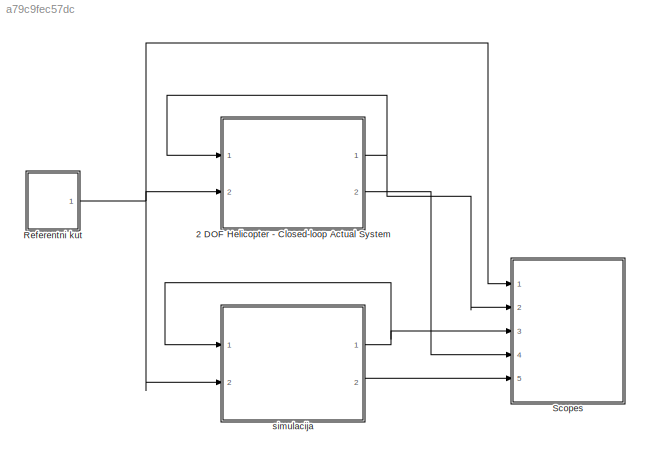
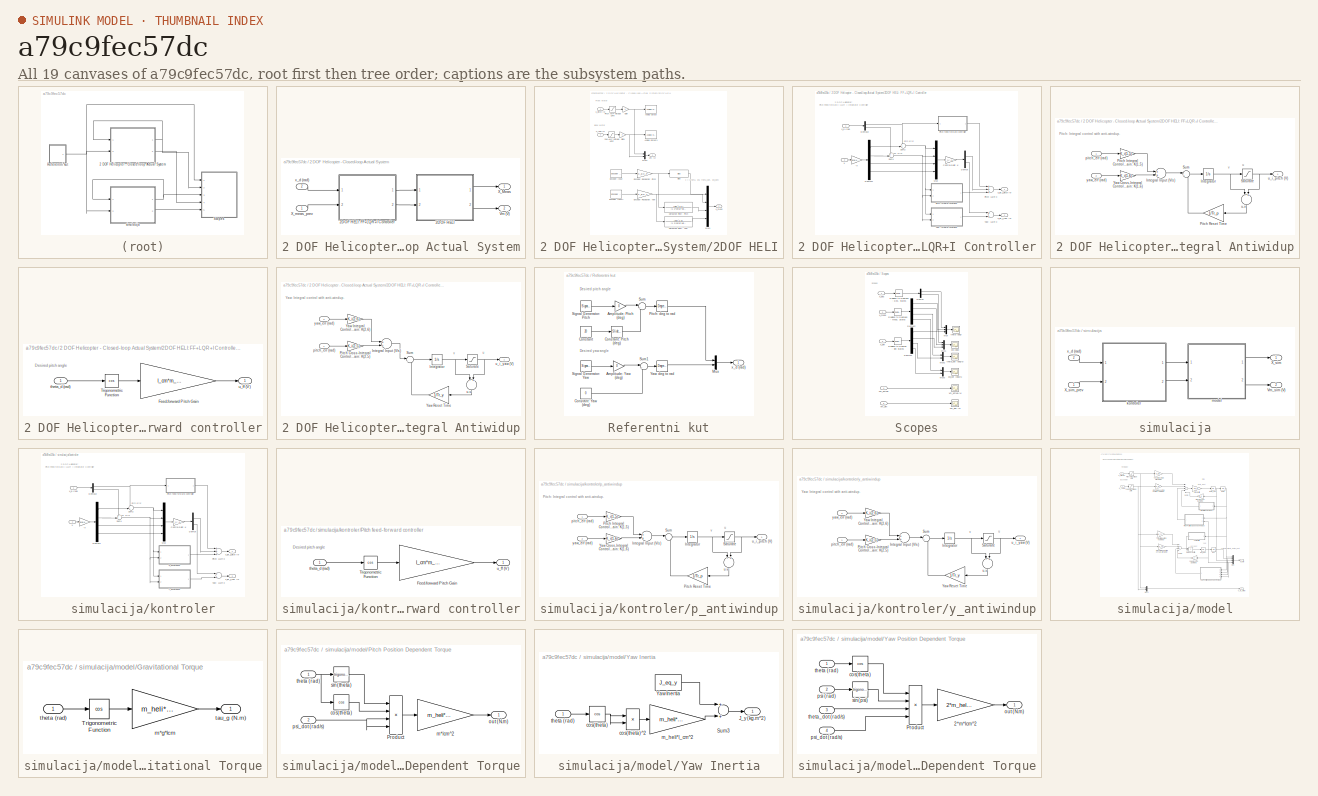
[diagram: thumbnail index - all 19 canvases of the model, root first then tree order]
MODEL slx_a79c9fec57dc
KIND model
CONFIG AbsTol = auto
CONFIG EnableMultiTasking = off
CONFIG FixedStep = 1e-3
CONFIG MaxStep = auto
CONFIG MinStep = auto
CONFIG RelTol = 1e-3
CONFIG SampleTimeConstraint = Unconstrained
CONFIG Solver = FixedStepAuto
CONFIG SolverName = FixedStepAuto
CONFIG StartTime = 0.0
CONFIG StopTime = inf
BLOCK [SubSystem] 2 DOF Helicopter - Closed-loop Actual System
  Ports = [2, 2]
  RequestExecContextInheritance = off
  Variant = off
BLOCK [SubSystem] 2 DOF Helicopter - Closed-loop Actual System/2DOF HELI
  Ports = [2, 2]
  RequestExecContextInheritance = off
  Variant = off
BLOCK [Reference] 2 DOF Helicopter - Closed-loop Actual System/2DOF HELI/Analog Output  REF=sldrtlib/Analog Output
  AttributesFormatString = Quanser\nMultiQ-PCI [auto]
  Ports = [1]
  SourceBlock = sldrtlib/Analog Output
  SourceType = Simulink Desktop Real-Time Analog Output
BLOCK [Reference] 2 DOF Helicopter - Closed-loop Actual System/2DOF HELI/Analog Output1  REF=sldrtlib/Analog Output
  AttributesFormatString = Quanser\nMultiQ-PCI [auto]
  Ports = [1]
  SourceBlock = sldrtlib/Analog Output
  SourceType = Simulink Desktop Real-Time Analog Output
BLOCK [Bias] 2 DOF Helicopter - Closed-loop Actual System/2DOF HELI/Bias
  Bias = theta_0
  SaturateOnIntegerOverflow = off
BLOCK [TransferFcn] 2 DOF Helicopter - Closed-loop Actual System/2DOF HELI/Derivative Filter: Pitch
  Denominator = [1 2*zetaf*wcf wcf^2]
  Numerator = [wcf^2 0 ]
BLOCK [TransferFcn] 2 DOF Helicopter - Closed-loop Actual System/2DOF HELI/Derivative Filter: Yaw
  Denominator = [1 2*zetaf*wcf wcf^2]
  Numerator = [wcf^2 0]
BLOCK [Reference] 2 DOF Helicopter - Closed-loop Actual System/2DOF HELI/Encoder Input  REF=sldrtlib/Encoder Input
  AttributesFormatString = Quanser\nMultiQ-PCI [auto]
  Ports = [0, 1]
  SourceBlock = sldrtlib/Encoder Input
  SourceType = Simulink Desktop Real-Time Encoder Input
BLOCK [Reference] 2 DOF Helicopter - Closed-loop Actual System/2DOF HELI/Encoder Input1  REF=sldrtlib/Encoder Input
  AttributesFormatString = Quanser\nMultiQ-PCI [auto]
  Ports = [0, 1]
  SourceBlock = sldrtlib/Encoder Input
  SourceType = Simulink Desktop Real-Time Encoder Input
BLOCK [Gain] 2 DOF Helicopter - Closed-loop Actual System/2DOF HELI/Encoder Resolution: Pitch 
  Gain = K_EC_P
  OutDataTypeStr = Inherit: Inherit via internal rule
  ParamDataTypeStr = Inherit: Inherit via internal rule
  SaturateOnIntegerOverflow = off
BLOCK [Gain] 2 DOF Helicopter - Closed-loop Actual System/2DOF HELI/Encoder Resolution: Yaw
  Gain = K_EC_Y
  OutDataTypeStr = Inherit: Inherit via internal rule
  ParamDataTypeStr = Inherit: Inherit via internal rule
  SaturateOnIntegerOverflow = off
BLOCK [Gain] 2 DOF Helicopter - Closed-loop Actual System/2DOF HELI/Gain
  OutDataTypeStr = Inherit: Inherit via internal rule
  ParamDataTypeStr = Inherit: Inherit via internal rule
  SaturateOnIntegerOverflow = off
BLOCK [Gain] 2 DOF Helicopter - Closed-loop Actual System/2DOF HELI/Gain1
  Gain = -1
  OutDataTypeStr = Inherit: Inherit via internal rule
  ParamDataTypeStr = Inherit: Inherit via internal rule
  SaturateOnIntegerOverflow = off
BLOCK [Mux] 2 DOF Helicopter - Closed-loop Actual System/2DOF HELI/Mux1
  DisplayOption = bar
  Ports = [4, 1]
BLOCK [Mux] 2 DOF Helicopter - Closed-loop Actual System/2DOF HELI/Mux2
  DisplayOption = bar
  Inputs = 2
  Ports = [2, 1]
BLOCK [Saturate] 2 DOF Helicopter - Closed-loop Actual System/2DOF HELI/Pitch AMP Voltage Limit
  InputPortMap = u0
  LowerLimit = - max_u
  Ports = [1, 1]
  UpperLimit = max_u
BLOCK [Outport] 2 DOF Helicopter - Closed-loop Actual System/2DOF HELI/Vm (V)
  IconDisplay = Port number
  Port = 2
BLOCK [Outport] 2 DOF Helicopter - Closed-loop Actual System/2DOF HELI/X_meas
  IconDisplay = Port number
BLOCK [Saturate] 2 DOF Helicopter - Closed-loop Actual System/2DOF HELI/Yaw AMP Voltage Limit
  InputPortMap = u0
  LowerLimit = - max_u
  Ports = [1, 1]
  UpperLimit = max_u
BLOCK [Inport] 2 DOF Helicopter - Closed-loop Actual System/2DOF HELI/u_pitch (V)
  IconDisplay = Port number
BLOCK [Inport] 2 DOF Helicopter - Closed-loop Actual System/2DOF HELI/u_yaw (V)
  IconDisplay = Port number
  Port = 2
BLOCK [SubSystem] 2 DOF Helicopter - Closed-loop Actual System/2DOF HELI: FF+LQR+I Controller
  Ports = [2, 2]
  RequestExecContextInheritance = off
  Variant = off
BLOCK [Gain] 2 DOF Helicopter - Closed-loop Actual System/2DOF HELI: FF+LQR+I Controller/-X
  Gain = -eye(4,4)
  Multiplication = Matrix(K*u)
  OutDataTypeStr = Inherit: Inherit via internal rule
  ParamDataTypeStr = Inherit: Inherit via internal rule
  SaturateOnIntegerOverflow = off
BLOCK [Gain] 2 DOF Helicopter - Closed-loop Actual System/2DOF HELI: FF+LQR+I Controller/Control Gain: K
  Gain = K_i(:,1:4)
  Multiplication = Matrix(K*u)
  OutDataTypeStr = Inherit: Inherit via internal rule
  ParamDataTypeStr = Inherit: Inherit via internal rule
  SaturateOnIntegerOverflow = off
BLOCK [Demux] 2 DOF Helicopter - Closed-loop Actual System/2DOF HELI: FF+LQR+I Controller/Demux
  DisplayOption = bar
  Outputs = 2
  Ports = [1, 2]
BLOCK [Demux] 2 DOF Helicopter - Closed-loop Actual System/2DOF HELI: FF+LQR+I Controller/Demux1
  DisplayOption = bar
  Ports = [1, 4]
BLOCK [Demux] 2 DOF Helicopter - Closed-loop Actual System/2DOF HELI: FF+LQR+I Controller/Demux2
  DisplayOption = bar
  Outputs = 2
  Ports = [1, 2]
BLOCK [Mux] 2 DOF Helicopter - Closed-loop Actual System/2DOF HELI: FF+LQR+I Controller/Mux
  DisplayOption = bar
  Ports = [4, 1]
BLOCK [SubSystem] 2 DOF Helicopter - Closed-loop Actual System/2DOF HELI: FF+LQR+I Controller/Pitch Integral Antiwidup
  Ports = [2, 1]
  RequestExecContextInheritance = off
  Variant = off
BLOCK [Sum] 2 DOF Helicopter - Closed-loop Actual System/2DOF HELI: FF+LQR+I Controller/Pitch Integral Antiwidup/Integral Input (V//s)
  InputSameDT = off
  OutDataTypeStr = Inherit: Inherit via internal rule
  Ports = [2, 1]
  SaturateOnIntegerOverflow = off
BLOCK [Integrator] 2 DOF Helicopter - Closed-loop Actual System/2DOF HELI: FF+LQR+I Controller/Pitch Integral Antiwidup/Integrator
  Ports = [1, 1]
BLOCK [Gain] 2 DOF Helicopter - Closed-loop Actual System/2DOF HELI: FF+LQR+I Controller/Pitch Integral Antiwidup/Pitch Integral Control Gain: K(1,5)
  Gain = K_i(1,5)
  Multiplication = Matrix(K*u)
  OutDataTypeStr = Inherit: Inherit via internal rule
  ParamDataTypeStr = Inherit: Inherit via internal rule
  SaturateOnIntegerOverflow = off
BLOCK [Gain] 2 DOF Helicopter - Closed-loop Actual System/2DOF HELI: FF+LQR+I Controller/Pitch Integral Antiwidup/Pitch Reset Time
  Gain = 1/Tr_p
  OutDataTypeStr = Inherit: Inherit via internal rule
  ParamDataTypeStr = Inherit: Inherit via internal rule
  SaturateOnIntegerOverflow = off
BLOCK [Saturate] 2 DOF Helicopter - Closed-loop Actual System/2DOF HELI: FF+LQR+I Controller/Pitch Integral Antiwidup/Saturate
  InputPortMap = u0
  LowerLimit = -max_u
  Ports = [1, 1]
  UpperLimit = max_u
BLOCK [Sum] 2 DOF Helicopter - Closed-loop Actual System/2DOF HELI: FF+LQR+I Controller/Pitch Integral Antiwidup/Sum
  IconShape = round
  InputSameDT = off
  Inputs = |++
  OutDataTypeStr = Inherit: Inherit via internal rule
  Ports = [2, 1]
  SaturateOnIntegerOverflow = off
BLOCK [Gain] 2 DOF Helicopter - Closed-loop Actual System/2DOF HELI: FF+LQR+I Controller/Pitch Integral Antiwidup/Yaw Cross-Integral Control Gain: K(1,6)
  Gain = K_i(1,6)
  Multiplication = Matrix(K*u)
  OutDataTypeStr = Inherit: Inherit via internal rule
  ParamDataTypeStr = Inherit: Inherit via internal rule
  SaturateOnIntegerOverflow = off
BLOCK [Inport] 2 DOF Helicopter - Closed-loop Actual System/2DOF HELI: FF+LQR+I Controller/Pitch Integral Antiwidup/pitch_err (rad)
  IconDisplay = Port number
BLOCK [Sum] 2 DOF Helicopter - Closed-loop Actual System/2DOF HELI: FF+LQR+I Controller/Pitch Integral Antiwidup/u-v
  InputSameDT = off
  Inputs = -+
  OutDataTypeStr = Inherit: Inherit via internal rule
  Ports = [2, 1]
  SaturateOnIntegerOverflow = off
BLOCK [Outport] 2 DOF Helicopter - Closed-loop Actual System/2DOF HELI: FF+LQR+I Controller/Pitch Integral Antiwidup/u_i_pitch (V)
  IconDisplay = Port number
BLOCK [Inport] 2 DOF Helicopter - Closed-loop Actual System/2DOF HELI: FF+LQR+I Controller/Pitch Integral Antiwidup/yaw_err (rad)
  IconDisplay = Port number
  Port = 2
BLOCK [SubSystem] 2 DOF Helicopter - Closed-loop Actual System/2DOF HELI: FF+LQR+I Controller/Pitch feed-forward controller
  Ports = [1, 1]
  RequestExecContextInheritance = off
  Variant = off
BLOCK [Gain] 2 DOF Helicopter - Closed-loop Actual System/2DOF HELI: FF+LQR+I Controller/Pitch feed-forward controller/Feed-forward Pitch Gain
  Gain = l_cm*m_heli*g / K_pp
  OutDataTypeStr = Inherit: Inherit via internal rule
  ParamDataTypeStr = Inherit: Inherit via internal rule
  SaturateOnIntegerOverflow = off
BLOCK [Trigonometry] 2 DOF Helicopter - Closed-loop Actual System/2DOF HELI: FF+LQR+I Controller/Pitch feed-forward controller/Trigonometric Function
  Operator = cos
  OutputSignalType = real
  Ports = [1, 1]
BLOCK [Inport] 2 DOF Helicopter - Closed-loop Actual System/2DOF HELI: FF+LQR+I Controller/Pitch feed-forward controller/theta_d (rad)
  IconDisplay = Port number
BLOCK [Outport] 2 DOF Helicopter - Closed-loop Actual System/2DOF HELI: FF+LQR+I Controller/Pitch feed-forward controller/u_ff (V)
  IconDisplay = Port number
BLOCK [Sum] 2 DOF Helicopter - Closed-loop Actual System/2DOF HELI: FF+LQR+I Controller/Pitch: LQR+I
  InputSameDT = off
  Inputs = +++
  OutDataTypeStr = Inherit: Inherit via internal rule
  Ports = [3, 1]
  SaturateOnIntegerOverflow = off
BLOCK [Sum] 2 DOF Helicopter - Closed-loop Actual System/2DOF HELI: FF+LQR+I Controller/Sum1
  IconShape = round
  InputSameDT = off
  Inputs = ++|
  OutDataTypeStr = Inherit: Inherit via internal rule
  Ports = [2, 1]
  SaturateOnIntegerOverflow = off
BLOCK [Sum] 2 DOF Helicopter - Closed-loop Actual System/2DOF HELI: FF+LQR+I Controller/Sum2
  IconShape = round
  InputSameDT = off
  Inputs = ++|
  OutDataTypeStr = Inherit: Inherit via internal rule
  Ports = [2, 1]
  SaturateOnIntegerOverflow = off
BLOCK [Inport] 2 DOF Helicopter - Closed-loop Actual System/2DOF HELI: FF+LQR+I Controller/X
  IconDisplay = Port number
  Port = 2
BLOCK [Inport] 2 DOF Helicopter - Closed-loop Actual System/2DOF HELI: FF+LQR+I Controller/X_d (rad)
  IconDisplay = Port number
BLOCK [SubSystem] 2 DOF Helicopter - Closed-loop Actual System/2DOF HELI: FF+LQR+I Controller/Yaw Integral Antiwidup
  Ports = [2, 1]
  RequestExecContextInheritance = off
  Variant = off
BLOCK [Sum] 2 DOF Helicopter - Closed-loop Actual System/2DOF HELI: FF+LQR+I Controller/Yaw Integral Antiwidup/Integral Input (V//s)
  InputSameDT = off
  OutDataTypeStr = Inherit: Inherit via internal rule
  Ports = [2, 1]
  SaturateOnIntegerOverflow = off
BLOCK [Integrator] 2 DOF Helicopter - Closed-loop Actual System/2DOF HELI: FF+LQR+I Controller/Yaw Integral Antiwidup/Integrator
  Ports = [1, 1]
BLOCK [Gain] 2 DOF Helicopter - Closed-loop Actual System/2DOF HELI: FF+LQR+I Controller/Yaw Integral Antiwidup/Pitch Cross-Integral Control Gain: K(2,5)
  Gain = K_i(2,5)
  Multiplication = Matrix(K*u)
  OutDataTypeStr = Inherit: Inherit via internal rule
  ParamDataTypeStr = Inherit: Inherit via internal rule
  SaturateOnIntegerOverflow = off
BLOCK [Saturate] 2 DOF Helicopter - Closed-loop Actual System/2DOF HELI: FF+LQR+I Controller/Yaw Integral Antiwidup/Saturate
  InputPortMap = u0
  LowerLimit = -max_u
  Ports = [1, 1]
  UpperLimit = max_u
BLOCK [Sum] 2 DOF Helicopter - Closed-loop Actual System/2DOF HELI: FF+LQR+I Controller/Yaw Integral Antiwidup/Sum
  IconShape = round
  InputSameDT = off
  Inputs = |++
  OutDataTypeStr = Inherit: Inherit via internal rule
  Ports = [2, 1]
  SaturateOnIntegerOverflow = off
BLOCK [Gain] 2 DOF Helicopter - Closed-loop Actual System/2DOF HELI: FF+LQR+I Controller/Yaw Integral Antiwidup/Yaw Integral Control Gain: K(2,6)
  Gain = K_i(2,6)
  Multiplication = Matrix(K*u)
  OutDataTypeStr = Inherit: Inherit via internal rule
  ParamDataTypeStr = Inherit: Inherit via internal rule
  SaturateOnIntegerOverflow = off
BLOCK [Gain] 2 DOF Helicopter - Closed-loop Actual System/2DOF HELI: FF+LQR+I Controller/Yaw Integral Antiwidup/Yaw Reset Time
  Gain = 1/Tr_y
  OutDataTypeStr = Inherit: Inherit via internal rule
  ParamDataTypeStr = Inherit: Inherit via internal rule
  SaturateOnIntegerOverflow = off
BLOCK [Inport] 2 DOF Helicopter - Closed-loop Actual System/2DOF HELI: FF+LQR+I Controller/Yaw Integral Antiwidup/pitch_err (rad)
  IconDisplay = Port number
BLOCK [Sum] 2 DOF Helicopter - Closed-loop Actual System/2DOF HELI: FF+LQR+I Controller/Yaw Integral Antiwidup/u-v
  InputSameDT = off
  Inputs = -+
  OutDataTypeStr = Inherit: Inherit via internal rule
  Ports = [2, 1]
  SaturateOnIntegerOverflow = off
BLOCK [Outport] 2 DOF Helicopter - Closed-loop Actual System/2DOF HELI: FF+LQR+I Controller/Yaw Integral Antiwidup/u_i_yaw (V)
  IconDisplay = Port number
BLOCK [Inport] 2 DOF Helicopter - Closed-loop Actual System/2DOF HELI: FF+LQR+I Controller/Yaw Integral Antiwidup/yaw_err (rad)
  IconDisplay = Port number
  Port = 2
BLOCK [Sum] 2 DOF Helicopter - Closed-loop Actual System/2DOF HELI: FF+LQR+I Controller/Yaw: LQR+I
  InputSameDT = off
  OutDataTypeStr = Inherit: Inherit via internal rule
  Ports = [2, 1]
  SaturateOnIntegerOverflow = off
BLOCK [Outport] 2 DOF Helicopter - Closed-loop Actual System/2DOF HELI: FF+LQR+I Controller/u_lqr_i_pitch (V)
  IconDisplay = Port number
BLOCK [Outport] 2 DOF Helicopter - Closed-loop Actual System/2DOF HELI: FF+LQR+I Controller/u_lqr_i_yaw (V)
  IconDisplay = Port number
  Port = 2
BLOCK [Outport] 2 DOF Helicopter - Closed-loop Actual System/Vm (V)
  IconDisplay = Port number
  Port = 2
BLOCK [Outport] 2 DOF Helicopter - Closed-loop Actual System/X_Meas
  IconDisplay = Port number
BLOCK [Inport] 2 DOF Helicopter - Closed-loop Actual System/X_meas_prev
  IconDisplay = Port number
BLOCK [Inport] 2 DOF Helicopter - Closed-loop Actual System/x_d (rad)
  IconDisplay = Port number
  Port = 2
BLOCK [SubSystem] Referentni kut
  Ports = [0, 1]
  RequestExecContextInheritance = off
  Variant = off
BLOCK [Gain] Referentni kut/Amplitude: Pitch (deg)
  Gain = 0
  OutDataTypeStr = Inherit: Inherit via internal rule
  ParamDataTypeStr = Inherit: Inherit via internal rule
  SaturateOnIntegerOverflow = off
BLOCK [Gain] Referentni kut/Amplitude: Yaw (deg)
  Gain = 0
  OutDataTypeStr = Inherit: Inherit via internal rule
  ParamDataTypeStr = Inherit: Inherit via internal rule
  SaturateOnIntegerOverflow = off
BLOCK [Constant] Referentni kut/Constant
  Value = 20
BLOCK [Reference] Referentni kut/Constant: Pitch (deg)  REF=simulink/Math
Operations/Slider
Gain
  Ports = [1, 1]
  SourceBlock = simulink/Math\nOperations/Slider\nGain
  SourceType = Slider Gain
BLOCK [Constant] Referentni kut/Constant: Yaw (deg)
  Value = 0
BLOCK [Mux] Referentni kut/Mux
  DisplayOption = bar
  Inputs = 2
  Ports = [2, 1]
BLOCK [Reference] Referentni kut/Pitch: deg to rad  REF=simulink_extras/Transformations/Degrees to
Radians
  Ports = [1, 1]
  SourceBlock = simulink_extras/Transformations/Degrees to\nRadians
  SourceType = DegreesToRadians
BLOCK [SignalGenerator] Referentni kut/Signal Generator: Pitch
  Amplitude = 15
  Frequency = 0.05
  Ports = [0, 1]
  WaveForm = square
BLOCK [SignalGenerator] Referentni kut/Signal Generator: Yaw
  Amplitude = 30
  Frequency = 0.05
  Ports = [0, 1]
  WaveForm = square
BLOCK [Sum] Referentni kut/Sum
  IconShape = round
  InputSameDT = off
  Inputs = |++
  OutDataTypeStr = Inherit: Inherit via internal rule
  Ports = [2, 1]
  SaturateOnIntegerOverflow = off
BLOCK [Sum] Referentni kut/Sum1
  IconShape = round
  InputSameDT = off
  Inputs = |++
  OutDataTypeStr = Inherit: Inherit via internal rule
  Ports = [2, 1]
  SaturateOnIntegerOverflow = off
BLOCK [Reference] Referentni kut/Yaw: deg to rad  REF=simulink_extras/Transformations/Degrees to
Radians
  Ports = [1, 1]
  SourceBlock = simulink_extras/Transformations/Degrees to\nRadians
  SourceType = DegreesToRadians
BLOCK [Outport] Referentni kut/x_d (rad)
  IconDisplay = Port number
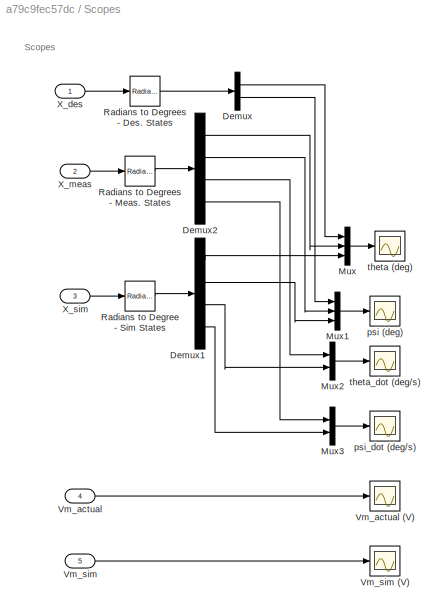
BLOCK [SubSystem] Scopes
  Ports = [5]
  RequestExecContextInheritance = off
  Variant = off
BLOCK [Demux] Scopes/Demux
  DisplayOption = bar
  Outputs = 2
  Ports = [1, 2]
BLOCK [Demux] Scopes/Demux1
  DisplayOption = bar
  Ports = [1, 4]
BLOCK [Demux] Scopes/Demux2
  DisplayOption = bar
  Ports = [1, 4]
BLOCK [Mux] Scopes/Mux
  DisplayOption = bar
  Inputs = 3
  Ports = [3, 1]
BLOCK [Mux] Scopes/Mux1
  DisplayOption = bar
  Inputs = 3
  Ports = [3, 1]
BLOCK [Mux] Scopes/Mux2
  DisplayOption = bar
  Inputs = 2
  Ports = [2, 1]
BLOCK [Mux] Scopes/Mux3
  DisplayOption = bar
  Inputs = 2
  Ports = [2, 1]
BLOCK [Reference] Scopes/Radians to Degree - Sim States  REF=simulink_extras/Transformations/Radians
to Degrees
  Ports = [1, 1]
  SourceBlock = simulink_extras/Transformations/Radians\nto Degrees
  SourceType = RadiansToDegrees
BLOCK [Reference] Scopes/Radians to Degrees - Des. States  REF=simulink_extras/Transformations/Radians
to Degrees
  Ports = [1, 1]
  SourceBlock = simulink_extras/Transformations/Radians\nto Degrees
  SourceType = RadiansToDegrees
BLOCK [Reference] Scopes/Radians to Degrees - Meas. States  REF=simulink_extras/Transformations/Radians
to Degrees
  Ports = [1, 1]
  SourceBlock = simulink_extras/Transformations/Radians\nto Degrees
  SourceType = RadiansToDegrees
BLOCK [Inport] Scopes/Vm_actual
  IconDisplay = Port number
  Port = 4
BLOCK [Scope] Scopes/Vm_actual (V)
  NumInputPorts = 1
  Ports = [1]
  ScopeSpecificationString = Simulink.scopes.TimeScopeBlockCfg('CurrentConfiguration', extmgr.ConfigurationSet(extmgr.Configuration('Core','General UI',true),extmgr.Configuration('Core','Source UI',true),extmgr.Configuration('Sources','WiredSimulink',true,'DataLoggingVariableName','Vm','DataLoggingSaveFormat','Array','DataLoggingDecimation','1','DataLoggingDecimateData',true,'DataLogging',true),extmgr.Configuration('Visuals',...<+1746ch>
BLOCK [Inport] Scopes/Vm_sim
  IconDisplay = Port number
  Port = 5
BLOCK [Scope] Scopes/Vm_sim (V)
  NumInputPorts = 1
  Ports = [1]
  ScopeSpecificationString = Simulink.scopes.TimeScopeBlockCfg('CurrentConfiguration', extmgr.ConfigurationSet(extmgr.Configuration('Core','General UI',true),extmgr.Configuration('Core','Source UI',true),extmgr.Configuration('Sources','WiredSimulink',true,'DataLoggingVariableName','ScopeData5','DataLoggingSaveFormat','Array','DataLoggingLimitDataPoints',true,'DataLoggingDecimation','1','DataLoggingDecimateData',true),extmgr.C...<+1744ch>
BLOCK [Inport] Scopes/X_des
  IconDisplay = Port number
BLOCK [Inport] Scopes/X_meas
  IconDisplay = Port number
  Port = 2
BLOCK [Inport] Scopes/X_sim
  IconDisplay = Port number
  Port = 3
BLOCK [Scope] Scopes/psi (deg)
  NumInputPorts = 1
  Ports = [1]
  ScopeSpecificationString = Simulink.scopes.TimeScopeBlockCfg('CurrentConfiguration', extmgr.ConfigurationSet(extmgr.Configuration('Core','General UI',true),extmgr.Configuration('Core','Source UI',true),extmgr.Configuration('Sources','WiredSimulink',true,'DataLoggingVariableName','psi','DataLoggingSaveFormat','Array','DataLoggingDecimation','1','DataLoggingDecimateData',true,'DataLogging',true),extmgr.Configuration('Visuals'...<+1763ch>
BLOCK [Scope] Scopes/psi_dot (deg//s)
  NumInputPorts = 1
  Ports = [1]
  ScopeSpecificationString = C++SS(StrPVP('Location','[498, 392, 1275, 924]'),StrPVP('Open','off'),StrPVP('TickLabels','on'),MxPVP('AxesTitles',24,'struct(''axes1'',''%<SignalLabel>'')'),StrPVP('TimeRange','1.000000'),StrPVP('YMin','-250'),StrPVP('YMax','250'),StrPVP('SaveName','ScopeData3'),StrPVP('DataFormat','Array'),StrPVP('BlockParamSampleTime','0'),StrPVP('LimitDataPoints','on'),StrPVP('Decimation','1'),StrPVP('BlockPar...<+22ch>
BLOCK [Scope] Scopes/theta (deg)
  NumInputPorts = 1
  Ports = [1]
  ScopeSpecificationString = Simulink.scopes.TimeScopeBlockCfg('CurrentConfiguration', extmgr.ConfigurationSet(extmgr.Configuration('Core','General UI',true),extmgr.Configuration('Core','Source UI',true),extmgr.Configuration('Sources','WiredSimulink',true,'DataLoggingSaveFormat','Array','DataLoggingDecimation','1','DataLoggingDecimateData',true,'DataLogging',true,'DataLoggingVariableName','theta'),extmgr.Configuration('Visual...<+1761ch>
BLOCK [Scope] Scopes/theta_dot (deg//s)
  NumInputPorts = 1
  Ports = [1]
  ScopeSpecificationString = C++SS(StrPVP('Location','[498, 392, 1275, 924]'),StrPVP('Open','off'),StrPVP('TickLabels','on'),MxPVP('AxesTitles',24,'struct(''axes1'',''%<SignalLabel>'')'),StrPVP('TimeRange','1.000000'),StrPVP('YMin','-250'),StrPVP('YMax','250'),StrPVP('SaveName','ScopeData2'),StrPVP('DataFormat','Array'),StrPVP('BlockParamSampleTime','0'),StrPVP('LimitDataPoints','on'),StrPVP('Decimation','1'),StrPVP('BlockPar...<+22ch>
BLOCK [SubSystem] simulacija
  Ports = [2, 2]
  RequestExecContextInheritance = off
  Variant = off
BLOCK [Outport] simulacija/Vm_sim (V)
  IconDisplay = Port number
  Port = 2
BLOCK [Outport] simulacija/X_sim
  IconDisplay = Port number
BLOCK [Inport] simulacija/X_sim_prev
  IconDisplay = Port number
BLOCK [SubSystem] simulacija/kontroler
  Ports = [2, 2]
  RequestExecContextInheritance = off
  Variant = off
BLOCK [Gain] simulacija/kontroler/-X
  Gain = -eye(4,4)
  Multiplication = Matrix(K*u)
  OutDataTypeStr = Inherit: Inherit via internal rule
  ParamDataTypeStr = Inherit: Inherit via internal rule
  SaturateOnIntegerOverflow = off
BLOCK [Gain] simulacija/kontroler/Control Gain: K
  Gain = K_i(:,1:4)
  Multiplication = Matrix(K*u)
  OutDataTypeStr = Inherit: Inherit via internal rule
  ParamDataTypeStr = Inherit: Inherit via internal rule
  SaturateOnIntegerOverflow = off
BLOCK [Demux] simulacija/kontroler/Demux
  DisplayOption = bar
  Outputs = 2
  Ports = [1, 2]
BLOCK [Demux] simulacija/kontroler/Demux1
  DisplayOption = bar
  Ports = [1, 4]
BLOCK [Demux] simulacija/kontroler/Demux2
  DisplayOption = bar
  Outputs = 2
  Ports = [1, 2]
BLOCK [Mux] simulacija/kontroler/Mux
  DisplayOption = bar
  Ports = [4, 1]
BLOCK [SubSystem] simulacija/kontroler/Pitch feed-forward controller
  Ports = [1, 1]
  RequestExecContextInheritance = off
  Variant = off
BLOCK [Gain] simulacija/kontroler/Pitch feed-forward controller/Feed-forward Pitch Gain
  Gain = l_cm*m_heli*g / K_pp
  OutDataTypeStr = Inherit: Inherit via internal rule
  ParamDataTypeStr = Inherit: Inherit via internal rule
  SaturateOnIntegerOverflow = off
BLOCK [Trigonometry] simulacija/kontroler/Pitch feed-forward controller/Trigonometric Function
  Operator = cos
  OutputSignalType = real
  Ports = [1, 1]
BLOCK [Inport] simulacija/kontroler/Pitch feed-forward controller/theta_d (rad)
  IconDisplay = Port number
BLOCK [Outport] simulacija/kontroler/Pitch feed-forward controller/u_ff (V)
  IconDisplay = Port number
BLOCK [Sum] simulacija/kontroler/Pitch: LQR+I
  InputSameDT = off
  Inputs = +++
  OutDataTypeStr = Inherit: Inherit via internal rule
  Ports = [3, 1]
  SaturateOnIntegerOverflow = off
BLOCK [Sum] simulacija/kontroler/Sum1
  IconShape = round
  InputSameDT = off
  Inputs = ++|
  OutDataTypeStr = Inherit: Inherit via internal rule
  Ports = [2, 1]
  SaturateOnIntegerOverflow = off
BLOCK [Sum] simulacija/kontroler/Sum2
  IconShape = round
  InputSameDT = off
  Inputs = ++|
  OutDataTypeStr = Inherit: Inherit via internal rule
  Ports = [2, 1]
  SaturateOnIntegerOverflow = off
BLOCK [Inport] simulacija/kontroler/X
  IconDisplay = Port number
  Port = 2
BLOCK [Inport] simulacija/kontroler/X_d (rad)
  IconDisplay = Port number
BLOCK [Sum] simulacija/kontroler/Yaw: LQR+I
  InputSameDT = off
  OutDataTypeStr = Inherit: Inherit via internal rule
  Ports = [2, 1]
  SaturateOnIntegerOverflow = off
BLOCK [SubSystem] simulacija/kontroler/p_antiwindup
  Ports = [2, 1]
  RequestExecContextInheritance = off
  Variant = off
BLOCK [Sum] simulacija/kontroler/p_antiwindup/Integral Input (V//s)
  InputSameDT = off
  OutDataTypeStr = Inherit: Inherit via internal rule
  Ports = [2, 1]
  SaturateOnIntegerOverflow = off
BLOCK [Integrator] simulacija/kontroler/p_antiwindup/Integrator
  Ports = [1, 1]
BLOCK [Gain] simulacija/kontroler/p_antiwindup/Pitch Integral Control Gain: K(1,5)
  Gain = K_i(1,5)
  Multiplication = Matrix(K*u)
  OutDataTypeStr = Inherit: Inherit via internal rule
  ParamDataTypeStr = Inherit: Inherit via internal rule
  SaturateOnIntegerOverflow = off
BLOCK [Gain] simulacija/kontroler/p_antiwindup/Pitch Reset Time
  Gain = 1/Tr_p
  OutDataTypeStr = Inherit: Inherit via internal rule
  ParamDataTypeStr = Inherit: Inherit via internal rule
  SaturateOnIntegerOverflow = off
BLOCK [Saturate] simulacija/kontroler/p_antiwindup/Saturate
  InputPortMap = u0
  LowerLimit = -max_u
  Ports = [1, 1]
  UpperLimit = max_u
BLOCK [Sum] simulacija/kontroler/p_antiwindup/Sum
  IconShape = round
  InputSameDT = off
  Inputs = |++
  OutDataTypeStr = Inherit: Inherit via internal rule
  Ports = [2, 1]
  SaturateOnIntegerOverflow = off
BLOCK [Gain] simulacija/kontroler/p_antiwindup/Yaw Cross-Integral Control Gain: K(1,6)
  Gain = K_i(1,6)
  Multiplication = Matrix(K*u)
  OutDataTypeStr = Inherit: Inherit via internal rule
  ParamDataTypeStr = Inherit: Inherit via internal rule
  SaturateOnIntegerOverflow = off
BLOCK [Inport] simulacija/kontroler/p_antiwindup/pitch_err (rad)
  IconDisplay = Port number
BLOCK [Sum] simulacija/kontroler/p_antiwindup/u-v
  InputSameDT = off
  Inputs = -+
  OutDataTypeStr = Inherit: Inherit via internal rule
  Ports = [2, 1]
  SaturateOnIntegerOverflow = off
BLOCK [Outport] simulacija/kontroler/p_antiwindup/u_i_pitch (V)
  IconDisplay = Port number
BLOCK [Inport] simulacija/kontroler/p_antiwindup/yaw_err (rad)
  IconDisplay = Port number
  Port = 2
BLOCK [Outport] simulacija/kontroler/u_lqr_i_pitch (V)
  IconDisplay = Port number
BLOCK [Outport] simulacija/kontroler/u_lqr_i_yaw (V)
  IconDisplay = Port number
  Port = 2
BLOCK [SubSystem] simulacija/kontroler/y_antiwindup
  Ports = [2, 1]
  RequestExecContextInheritance = off
  Variant = off
BLOCK [Sum] simulacija/kontroler/y_antiwindup/Integral Input (V//s)
  InputSameDT = off
  OutDataTypeStr = Inherit: Inherit via internal rule
  Ports = [2, 1]
  SaturateOnIntegerOverflow = off
BLOCK [Integrator] simulacija/kontroler/y_antiwindup/Integrator
  Ports = [1, 1]
BLOCK [Gain] simulacija/kontroler/y_antiwindup/Pitch Cross-Integral Control Gain: K(2,5)
  Gain = K_i(2,5)
  Multiplication = Matrix(K*u)
  OutDataTypeStr = Inherit: Inherit via internal rule
  ParamDataTypeStr = Inherit: Inherit via internal rule
  SaturateOnIntegerOverflow = off
BLOCK [Saturate] simulacija/kontroler/y_antiwindup/Saturate
  InputPortMap = u0
  LowerLimit = -max_u
  Ports = [1, 1]
  UpperLimit = max_u
BLOCK [Sum] simulacija/kontroler/y_antiwindup/Sum
  IconShape = round
  InputSameDT = off
  Inputs = |++
  OutDataTypeStr = Inherit: Inherit via internal rule
  Ports = [2, 1]
  SaturateOnIntegerOverflow = off
BLOCK [Gain] simulacija/kontroler/y_antiwindup/Yaw Integral Control Gain: K(2,6)
  Gain = K_i(2,6)
  Multiplication = Matrix(K*u)
  OutDataTypeStr = Inherit: Inherit via internal rule
  ParamDataTypeStr = Inherit: Inherit via internal rule
  SaturateOnIntegerOverflow = off
BLOCK [Gain] simulacija/kontroler/y_antiwindup/Yaw Reset Time
  Gain = 1/Tr_y
  OutDataTypeStr = Inherit: Inherit via internal rule
  ParamDataTypeStr = Inherit: Inherit via internal rule
  SaturateOnIntegerOverflow = off
BLOCK [Inport] simulacija/kontroler/y_antiwindup/pitch_err (rad)
  IconDisplay = Port number
BLOCK [Sum] simulacija/kontroler/y_antiwindup/u-v
  InputSameDT = off
  Inputs = -+
  OutDataTypeStr = Inherit: Inherit via internal rule
  Ports = [2, 1]
  SaturateOnIntegerOverflow = off
BLOCK [Outport] simulacija/kontroler/y_antiwindup/u_i_yaw (V)
  IconDisplay = Port number
BLOCK [Inport] simulacija/kontroler/y_antiwindup/yaw_err (rad)
  IconDisplay = Port number
  Port = 2
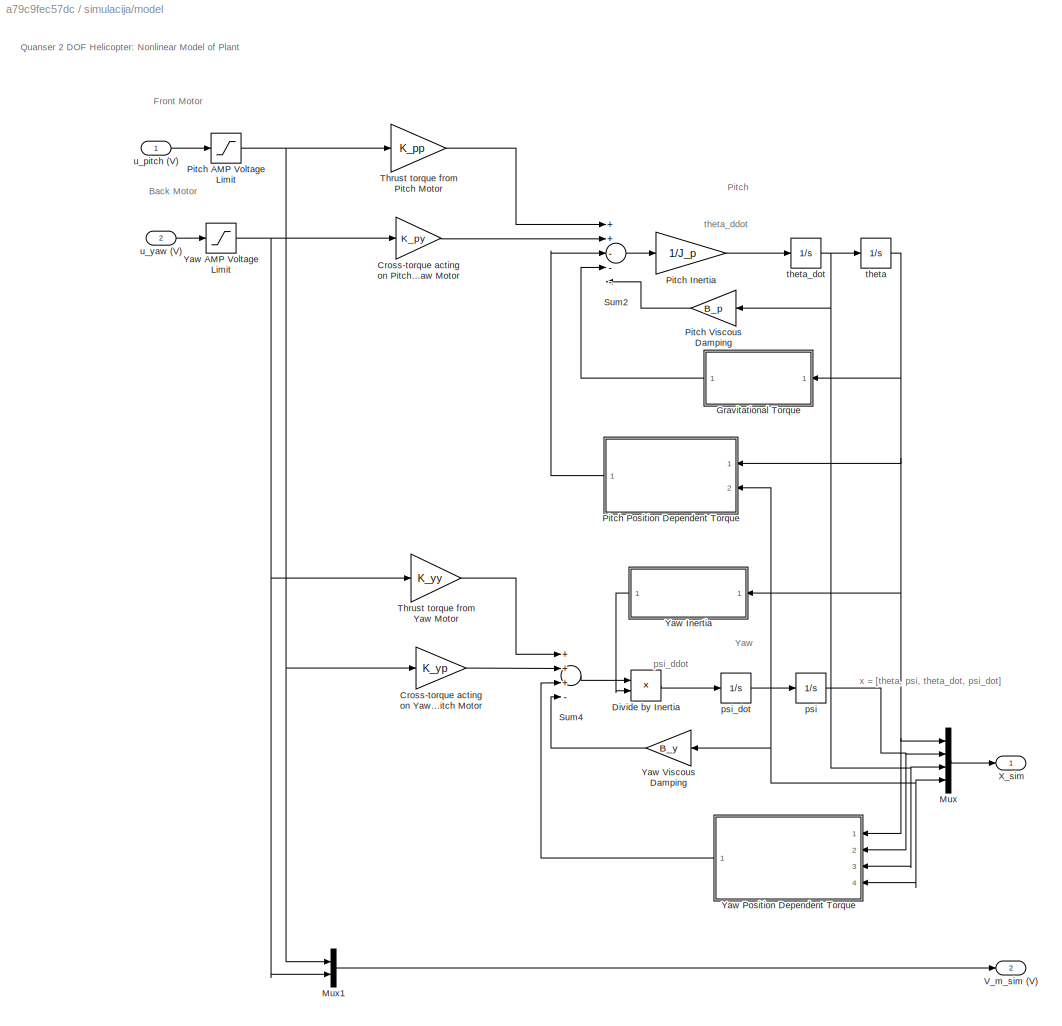
BLOCK [SubSystem] simulacija/model
  Ports = [2, 2]
  RequestExecContextInheritance = off
  Variant = off
BLOCK [Gain] simulacija/model/Cross-torque acting on Pitch from Yaw Motor
  Gain = K_py
  OutDataTypeStr = Inherit: Inherit via internal rule
  ParamDataTypeStr = Inherit: Inherit via internal rule
  SaturateOnIntegerOverflow = off
BLOCK [Gain] simulacija/model/Cross-torque acting on Yaw from Pitch Motor
  Gain = K_yp
  OutDataTypeStr = Inherit: Inherit via internal rule
  ParamDataTypeStr = Inherit: Inherit via internal rule
  SaturateOnIntegerOverflow = off
BLOCK [Product] simulacija/model/Divide by Inertia
  InputSameDT = off
  Inputs = */
  OutDataTypeStr = Inherit: Inherit via internal rule
  Ports = [2, 1]
  RndMeth = Floor
  SaturateOnIntegerOverflow = off
BLOCK [SubSystem] simulacija/model/Gravitational Torque
  Ports = [1, 1]
  RequestExecContextInheritance = off
  Variant = off
BLOCK [Trigonometry] simulacija/model/Gravitational Torque/Trigonometric Function
  Operator = cos
  OutputSignalType = real
  Ports = [1, 1]
BLOCK [Gain] simulacija/model/Gravitational Torque/m*g*lcm
  Gain = m_heli*g*l_cm
  OutDataTypeStr = Inherit: Inherit via internal rule
  ParamDataTypeStr = Inherit: Inherit via internal rule
  SaturateOnIntegerOverflow = off
BLOCK [Outport] simulacija/model/Gravitational Torque/tau_g (N.m)
  IconDisplay = Port number
BLOCK [Inport] simulacija/model/Gravitational Torque/theta (rad)
  IconDisplay = Port number
BLOCK [Mux] simulacija/model/Mux
  DisplayOption = bar
  Ports = [4, 1]
BLOCK [Mux] simulacija/model/Mux1
  DisplayOption = bar
  Inputs = 2
  Ports = [2, 1]
BLOCK [Saturate] simulacija/model/Pitch AMP Voltage Limit
  InputPortMap = u0
  LowerLimit = - max_u
  Ports = [1, 1]
  UpperLimit = max_u
BLOCK [Gain] simulacija/model/Pitch Inertia
  Gain = 1/J_p
  OutDataTypeStr = Inherit: Inherit via internal rule
  ParamDataTypeStr = Inherit: Inherit via internal rule
  SaturateOnIntegerOverflow = off
BLOCK [SubSystem] simulacija/model/Pitch Position Dependent Torque
  Ports = [2, 1]
  RequestExecContextInheritance = off
  Variant = off
BLOCK [Product] simulacija/model/Pitch Position Dependent Torque/Product
  InputSameDT = off
  Inputs = 4
  OutDataTypeStr = Inherit: Inherit via internal rule
  Ports = [4, 1]
  SaturateOnIntegerOverflow = off
BLOCK [Trigonometry] simulacija/model/Pitch Position Dependent Torque/cos(theta)
  Operator = cos
  OutputSignalType = real
  Ports = [1, 1]
BLOCK [Gain] simulacija/model/Pitch Position Dependent Torque/m*lcm^2
  Gain = m_heli*l_cm^2
  OutDataTypeStr = Inherit: Inherit via internal rule
  ParamDataTypeStr = Inherit: Inherit via internal rule
  SaturateOnIntegerOverflow = off
BLOCK [Outport] simulacija/model/Pitch Position Dependent Torque/out (N.m)
  IconDisplay = Port number
BLOCK [Inport] simulacija/model/Pitch Position Dependent Torque/psi_dot (rad//s)
  IconDisplay = Port number
  Port = 2
BLOCK [Trigonometry] simulacija/model/Pitch Position Dependent Torque/sin(theta)
  OutputSignalType = real
  Ports = [1, 1]
BLOCK [Inport] simulacija/model/Pitch Position Dependent Torque/theta (rad)
  IconDisplay = Port number
BLOCK [Gain] simulacija/model/Pitch Viscous Damping
  Gain = B_p
  OutDataTypeStr = Inherit: Inherit via internal rule
  ParamDataTypeStr = Inherit: Inherit via internal rule
  SaturateOnIntegerOverflow = off
BLOCK [Sum] simulacija/model/Sum2
  InputSameDT = off
  Inputs = ++---
  OutDataTypeStr = Inherit: Inherit via internal rule
  Ports = [5, 1]
  SaturateOnIntegerOverflow = off
BLOCK [Sum] simulacija/model/Sum4
  InputSameDT = off
  Inputs = +++-
  OutDataTypeStr = Inherit: Inherit via internal rule
  Ports = [4, 1]
  SaturateOnIntegerOverflow = off
BLOCK [Gain] simulacija/model/Thrust torque from Pitch Motor
  Gain = K_pp
  OutDataTypeStr = Inherit: Inherit via internal rule
  ParamDataTypeStr = Inherit: Inherit via internal rule
  SaturateOnIntegerOverflow = off
BLOCK [Gain] simulacija/model/Thrust torque from Yaw Motor
  Gain = K_yy
  OutDataTypeStr = Inherit: Inherit via internal rule
  ParamDataTypeStr = Inherit: Inherit via internal rule
  SaturateOnIntegerOverflow = off
BLOCK [Outport] simulacija/model/V_m_sim (V)
  IconDisplay = Port number
  Port = 2
BLOCK [Outport] simulacija/model/X_sim
  IconDisplay = Port number
BLOCK [Saturate] simulacija/model/Yaw AMP Voltage Limit
  InputPortMap = u0
  LowerLimit = - max_u
  Ports = [1, 1]
  UpperLimit = max_u
BLOCK [SubSystem] simulacija/model/Yaw Inertia
  Ports = [1, 1]
  RequestExecContextInheritance = off
  Variant = off
BLOCK [Outport] simulacija/model/Yaw Inertia/J_y (kg.m^2)
  IconDisplay = Port number
BLOCK [Sum] simulacija/model/Yaw Inertia/Sum3
  InputSameDT = off
  OutDataTypeStr = Inherit: Inherit via internal rule
  Ports = [2, 1]
  SaturateOnIntegerOverflow = off
BLOCK [Constant] simulacija/model/Yaw Inertia/Yaw Inertia
  Value = J_eq_y
BLOCK [Trigonometry] simulacija/model/Yaw Inertia/cos(theta)
  Operator = cos
  OutputSignalType = real
  Ports = [1, 1]
BLOCK [Product] simulacija/model/Yaw Inertia/cos(theta)^2
  InputSameDT = off
  OutDataTypeStr = Inherit: Inherit via internal rule
  Ports = [2, 1]
  SaturateOnIntegerOverflow = off
BLOCK [Gain] simulacija/model/Yaw Inertia/m_heli*l_cm^2
  Gain = m_heli*l_cm^2
  OutDataTypeStr = Inherit: Inherit via internal rule
  ParamDataTypeStr = Inherit: Inherit via internal rule
  SaturateOnIntegerOverflow = off
BLOCK [Inport] simulacija/model/Yaw Inertia/theta (rad)
  IconDisplay = Port number
BLOCK [SubSystem] simulacija/model/Yaw Position Dependent Torque
  Ports = [4, 1]
  RequestExecContextInheritance = off
  Variant = off
BLOCK [Gain] simulacija/model/Yaw Position Dependent Torque/2*m*lcm^2
  Gain = 2*m_heli*l_cm^2
  OutDataTypeStr = Inherit: Inherit via internal rule
  ParamDataTypeStr = Inherit: Inherit via internal rule
  SaturateOnIntegerOverflow = off
BLOCK [Product] simulacija/model/Yaw Position Dependent Torque/Product
  InputSameDT = off
  Inputs = 4
  OutDataTypeStr = Inherit: Inherit via internal rule
  Ports = [4, 1]
  SaturateOnIntegerOverflow = off
BLOCK [Trigonometry] simulacija/model/Yaw Position Dependent Torque/cos(theta)
  Operator = cos
  OutputSignalType = real
  Ports = [1, 1]
BLOCK [Outport] simulacija/model/Yaw Position Dependent Torque/out (N.m)
  IconDisplay = Port number
BLOCK [Inport] simulacija/model/Yaw Position Dependent Torque/psi (rad)
  IconDisplay = Port number
  Port = 2
BLOCK [Inport] simulacija/model/Yaw Position Dependent Torque/psi_dot (rad//s)
  IconDisplay = Port number
  Port = 4
BLOCK [Trigonometry] simulacija/model/Yaw Position Dependent Torque/sin(psi)
  OutputSignalType = real
  Ports = [1, 1]
BLOCK [Inport] simulacija/model/Yaw Position Dependent Torque/theta (rad)
  IconDisplay = Port number
BLOCK [Inport] simulacija/model/Yaw Position Dependent Torque/theta_dot (rad//s)
  IconDisplay = Port number
  Port = 3
BLOCK [Gain] simulacija/model/Yaw Viscous Damping
  Gain = B_y
  OutDataTypeStr = Inherit: Inherit via internal rule
  ParamDataTypeStr = Inherit: Inherit via internal rule
  SaturateOnIntegerOverflow = off
BLOCK [Integrator] simulacija/model/psi
  Ports = [1, 1]
BLOCK [Integrator] simulacija/model/psi_dot
  Ports = [1, 1]
BLOCK [Integrator] simulacija/model/theta
  InitialCondition = theta_0
  LimitOutput = on
  LowerSaturationLimit = -60*pi/180
  Ports = [1, 1]
  UpperSaturationLimit = 60*pi/180
BLOCK [Integrator] simulacija/model/theta_dot
  Ports = [1, 1]
BLOCK [Inport] simulacija/model/u_pitch (V)
  IconDisplay = Port number
BLOCK [Inport] simulacija/model/u_yaw (V)
  IconDisplay = Port number
  Port = 2
BLOCK [Inport] simulacija/x_d (rad)
  IconDisplay = Port number
  Port = 2
ANNOTATION 2 DOF Helicopter - Closed-loop Actual System/2DOF HELI: Back Motor
ANNOTATION 2 DOF Helicopter - Closed-loop Actual System/2DOF HELI: Front Motor
ANNOTATION 2 DOF Helicopter - Closed-loop Actual System/2DOF HELI: x = [theta, psi, theta_dot, psi_dot]
ANNOTATION 2 DOF Helicopter - Closed-loop Actual System/2DOF HELI: FF+LQR+I Controller: 2 DOF Helicopter: Pitch Feed-forward + LQR + Integrator Controller
ANNOTATION 2 DOF Helicopter - Closed-loop Actual System/2DOF HELI: FF+LQR+I Controller: pitch error
ANNOTATION 2 DOF Helicopter - Closed-loop Actual System/2DOF HELI: FF+LQR+I Controller: yaw error
ANNOTATION 2 DOF Helicopter - Closed-loop Actual System/2DOF HELI: FF+LQR+I Controller/Pitch Integral Antiwidup: Pitch: Integral control with anti-windup.
ANNOTATION 2 DOF Helicopter - Closed-loop Actual System/2DOF HELI: FF+LQR+I Controller/Pitch Integral Antiwidup: u
ANNOTATION 2 DOF Helicopter - Closed-loop Actual System/2DOF HELI: FF+LQR+I Controller/Pitch Integral Antiwidup: v
ANNOTATION 2 DOF Helicopter - Closed-loop Actual System/2DOF HELI: FF+LQR+I Controller/Pitch feed-forward controller: Desired pitch angle
ANNOTATION 2 DOF Helicopter - Closed-loop Actual System/2DOF HELI: FF+LQR+I Controller/Yaw Integral Antiwidup: Yaw: Integral control with anti-windup.
ANNOTATION 2 DOF Helicopter - Closed-loop Actual System/2DOF HELI: FF+LQR+I Controller/Yaw Integral Antiwidup: u
ANNOTATION 2 DOF Helicopter - Closed-loop Actual System/2DOF HELI: FF+LQR+I Controller/Yaw Integral Antiwidup: v
ANNOTATION Referentni kut: Desired pitch angle
ANNOTATION Referentni kut: Desired yaw angle
ANNOTATION Scopes: Scopes
ANNOTATION simulacija/kontroler: 2 DOF Helicopter: Pitch Feed-forward + LQR + Integrator Controller
ANNOTATION simulacija/kontroler: pitch error
ANNOTATION simulacija/kontroler: yaw error
ANNOTATION simulacija/kontroler/Pitch feed-forward controller: Desired pitch angle
ANNOTATION simulacija/kontroler/p_antiwindup: Pitch: Integral control with anti-windup.
ANNOTATION simulacija/kontroler/p_antiwindup: u
ANNOTATION simulacija/kontroler/p_antiwindup: v
ANNOTATION simulacija/kontroler/y_antiwindup: Yaw: Integral control with anti-windup.
ANNOTATION simulacija/kontroler/y_antiwindup: u
ANNOTATION simulacija/kontroler/y_antiwindup: v
ANNOTATION simulacija/model: Back Motor
ANNOTATION simulacija/model: Front Motor
ANNOTATION simulacija/model: Pitch
ANNOTATION simulacija/model: Quanser 2 DOF Helicopter: Nonlinear Model of Plant
ANNOTATION simulacija/model: Yaw
ANNOTATION simulacija/model: psi_ddot
ANNOTATION simulacija/model: theta_ddot
ANNOTATION simulacija/model: x = [theta, psi, theta_dot, psi_dot]
LINE 2 DOF Helicopter - Closed-loop Actual System/2DOF HELI/Bias:1 -> 2 DOF Helicopter - Closed-loop Actual System/2DOF HELI/Mux1:1
LINE 2 DOF Helicopter - Closed-loop Actual System/2DOF HELI/Derivative Filter: Pitch:1 -> 2 DOF Helicopter - Closed-loop Actual System/2DOF HELI/Mux1:3
LINE 2 DOF Helicopter - Closed-loop Actual System/2DOF HELI/Derivative Filter: Yaw:1 -> 2 DOF Helicopter - Closed-loop Actual System/2DOF HELI/Mux1:4
LINE 2 DOF Helicopter - Closed-loop Actual System/2DOF HELI/Encoder Input1:1 -> 2 DOF Helicopter - Closed-loop Actual System/2DOF HELI/Encoder Resolution: Yaw:1
LINE 2 DOF Helicopter - Closed-loop Actual System/2DOF HELI/Encoder Input:1 -> 2 DOF Helicopter - Closed-loop Actual System/2DOF HELI/Encoder Resolution: Pitch :1
NET 2 DOF Helicopter - Closed-loop Actual System/2DOF HELI/Encoder Resolution: Pitch :1 -> 2 DOF Helicopter - Closed-loop Actual System/2DOF HELI/Bias:1, 2 DOF Helicopter - Closed-loop Actual System/2DOF HELI/Derivative Filter: Pitch:1
NET 2 DOF Helicopter - Closed-loop Actual System/2DOF HELI/Encoder Resolution: Yaw:1 -> 2 DOF Helicopter - Closed-loop Actual System/2DOF HELI/Derivative Filter: Yaw:1, 2 DOF Helicopter - Closed-loop Actual System/2DOF HELI/Mux1:2
NET 2 DOF Helicopter - Closed-loop Actual System/2DOF HELI/Gain1:1 -> 2 DOF Helicopter - Closed-loop Actual System/2DOF HELI/Analog Output1:1, 2 DOF Helicopter - Closed-loop Actual System/2DOF HELI/Mux2:2
NET 2 DOF Helicopter - Closed-loop Actual System/2DOF HELI/Gain:1 -> 2 DOF Helicopter - Closed-loop Actual System/2DOF HELI/Analog Output:1, 2 DOF Helicopter - Closed-loop Actual System/2DOF HELI/Mux2:1
LINE 2 DOF Helicopter - Closed-loop Actual System/2DOF HELI/Mux1:1 -> 2 DOF Helicopter - Closed-loop Actual System/2DOF HELI/X_meas:1
LINE 2 DOF Helicopter - Closed-loop Actual System/2DOF HELI/Mux2:1 -> 2 DOF Helicopter - Closed-loop Actual System/2DOF HELI/Vm (V):1
LINE 2 DOF Helicopter - Closed-loop Actual System/2DOF HELI/Pitch AMP Voltage Limit:1 -> 2 DOF Helicopter - Closed-loop Actual System/2DOF HELI/Gain:1
LINE 2 DOF Helicopter - Closed-loop Actual System/2DOF HELI/Yaw AMP Voltage Limit:1 -> 2 DOF Helicopter - Closed-loop Actual System/2DOF HELI/Gain1:1
LINE 2 DOF Helicopter - Closed-loop Actual System/2DOF HELI/u_pitch (V):1 -> 2 DOF Helicopter - Closed-loop Actual System/2DOF HELI/Pitch AMP Voltage Limit:1
LINE 2 DOF Helicopter - Closed-loop Actual System/2DOF HELI/u_yaw (V):1 -> 2 DOF Helicopter - Closed-loop Actual System/2DOF HELI/Yaw AMP Voltage Limit:1
LINE 2 DOF Helicopter - Closed-loop Actual System/2DOF HELI: FF+LQR+I Controller/-X:1 -> 2 DOF Helicopter - Closed-loop Actual System/2DOF HELI: FF+LQR+I Controller/Demux1:1
LINE 2 DOF Helicopter - Closed-loop Actual System/2DOF HELI: FF+LQR+I Controller/Control Gain: K:1 -> 2 DOF Helicopter - Closed-loop Actual System/2DOF HELI: FF+LQR+I Controller/Demux:1
LINE 2 DOF Helicopter - Closed-loop Actual System/2DOF HELI: FF+LQR+I Controller/Demux1:1 -> 2 DOF Helicopter - Closed-loop Actual System/2DOF HELI: FF+LQR+I Controller/Sum2:2
LINE 2 DOF Helicopter - Closed-loop Actual System/2DOF HELI: FF+LQR+I Controller/Demux1:2 -> 2 DOF Helicopter - Closed-loop Actual System/2DOF HELI: FF+LQR+I Controller/Sum1:2
LINE 2 DOF Helicopter - Closed-loop Actual System/2DOF HELI: FF+LQR+I Controller/Demux1:3 -> 2 DOF Helicopter - Closed-loop Actual System/2DOF HELI: FF+LQR+I Controller/Mux:3
LINE 2 DOF Helicopter - Closed-loop Actual System/2DOF HELI: FF+LQR+I Controller/Demux1:4 -> 2 DOF Helicopter - Closed-loop Actual System/2DOF HELI: FF+LQR+I Controller/Mux:4
NET 2 DOF Helicopter - Closed-loop Actual System/2DOF HELI: FF+LQR+I Controller/Demux2:1 -> 2 DOF Helicopter - Closed-loop Actual System/2DOF HELI: FF+LQR+I Controller/Pitch feed-forward controller:1, 2 DOF Helicopter - Closed-loop Actual System/2DOF HELI: FF+LQR+I Controller/Sum2:1
LINE 2 DOF Helicopter - Closed-loop Actual System/2DOF HELI: FF+LQR+I Controller/Demux2:2 -> 2 DOF Helicopter - Closed-loop Actual System/2DOF HELI: FF+LQR+I Controller/Sum1:1
LINE 2 DOF Helicopter - Closed-loop Actual System/2DOF HELI: FF+LQR+I Controller/Demux:1 -> 2 DOF Helicopter - Closed-loop Actual System/2DOF HELI: FF+LQR+I Controller/Pitch: LQR+I:2
LINE 2 DOF Helicopter - Closed-loop Actual System/2DOF HELI: FF+LQR+I Controller/Demux:2 -> 2 DOF Helicopter - Closed-loop Actual System/2DOF HELI: FF+LQR+I Controller/Yaw: LQR+I:1
LINE 2 DOF Helicopter - Closed-loop Actual System/2DOF HELI: FF+LQR+I Controller/Mux:1 -> 2 DOF Helicopter - Closed-loop Actual System/2DOF HELI: FF+LQR+I Controller/Control Gain: K:1
LINE 2 DOF Helicopter - Closed-loop Actual System/2DOF HELI: FF+LQR+I Controller/Pitch Integral Antiwidup/Integral Input (V//s):1 -> 2 DOF Helicopter - Closed-loop Actual System/2DOF HELI: FF+LQR+I Controller/Pitch Integral Antiwidup/Sum:1
NET 2 DOF Helicopter - Closed-loop Actual System/2DOF HELI: FF+LQR+I Controller/Pitch Integral Antiwidup/Integrator:1 -> 2 DOF Helicopter - Closed-loop Actual System/2DOF HELI: FF+LQR+I Controller/Pitch Integral Antiwidup/Saturate:1, 2 DOF Helicopter - Closed-loop Actual System/2DOF HELI: FF+LQR+I Controller/Pitch Integral Antiwidup/u-v:1
LINE 2 DOF Helicopter - Closed-loop Actual System/2DOF HELI: FF+LQR+I Controller/Pitch Integral Antiwidup/Pitch Integral Control Gain: K(1,5):1 -> 2 DOF Helicopter - Closed-loop Actual System/2DOF HELI: FF+LQR+I Controller/Pitch Integral Antiwidup/Integral Input (V//s):1
LINE 2 DOF Helicopter - Closed-loop Actual System/2DOF HELI: FF+LQR+I Controller/Pitch Integral Antiwidup/Pitch Reset Time:1 -> 2 DOF Helicopter - Closed-loop Actual System/2DOF HELI: FF+LQR+I Controller/Pitch Integral Antiwidup/Sum:2
NET 2 DOF Helicopter - Closed-loop Actual System/2DOF HELI: FF+LQR+I Controller/Pitch Integral Antiwidup/Saturate:1 -> 2 DOF Helicopter - Closed-loop Actual System/2DOF HELI: FF+LQR+I Controller/Pitch Integral Antiwidup/u-v:2, 2 DOF Helicopter - Closed-loop Actual System/2DOF HELI: FF+LQR+I Controller/Pitch Integral Antiwidup/u_i_pitch (V):1
LINE 2 DOF Helicopter - Closed-loop Actual System/2DOF HELI: FF+LQR+I Controller/Pitch Integral Antiwidup/Sum:1 -> 2 DOF Helicopter - Closed-loop Actual System/2DOF HELI: FF+LQR+I Controller/Pitch Integral Antiwidup/Integrator:1
LINE 2 DOF Helicopter - Closed-loop Actual System/2DOF HELI: FF+LQR+I Controller/Pitch Integral Antiwidup/Yaw Cross-Integral Control Gain: K(1,6):1 -> 2 DOF Helicopter - Closed-loop Actual System/2DOF HELI: FF+LQR+I Controller/Pitch Integral Antiwidup/Integral Input (V//s):2
LINE 2 DOF Helicopter - Closed-loop Actual System/2DOF HELI: FF+LQR+I Controller/Pitch Integral Antiwidup/pitch_err (rad):1 -> 2 DOF Helicopter - Closed-loop Actual System/2DOF HELI: FF+LQR+I Controller/Pitch Integral Antiwidup/Pitch Integral Control Gain: K(1,5):1
LINE 2 DOF Helicopter - Closed-loop Actual System/2DOF HELI: FF+LQR+I Controller/Pitch Integral Antiwidup/u-v:1 -> 2 DOF Helicopter - Closed-loop Actual System/2DOF HELI: FF+LQR+I Controller/Pitch Integral Antiwidup/Pitch Reset Time:1
LINE 2 DOF Helicopter - Closed-loop Actual System/2DOF HELI: FF+LQR+I Controller/Pitch Integral Antiwidup/yaw_err (rad):1 -> 2 DOF Helicopter - Closed-loop Actual System/2DOF HELI: FF+LQR+I Controller/Pitch Integral Antiwidup/Yaw Cross-Integral Control Gain: K(1,6):1
LINE 2 DOF Helicopter - Closed-loop Actual System/2DOF HELI: FF+LQR+I Controller/Pitch Integral Antiwidup:1 -> 2 DOF Helicopter - Closed-loop Actual System/2DOF HELI: FF+LQR+I Controller/Pitch: LQR+I:3
LINE 2 DOF Helicopter - Closed-loop Actual System/2DOF HELI: FF+LQR+I Controller/Pitch feed-forward controller/Feed-forward Pitch Gain:1 -> 2 DOF Helicopter - Closed-loop Actual System/2DOF HELI: FF+LQR+I Controller/Pitch feed-forward controller/u_ff (V):1
LINE 2 DOF Helicopter - Closed-loop Actual System/2DOF HELI: FF+LQR+I Controller/Pitch feed-forward controller/Trigonometric Function:1 -> 2 DOF Helicopter - Closed-loop Actual System/2DOF HELI: FF+LQR+I Controller/Pitch feed-forward controller/Feed-forward Pitch Gain:1
LINE 2 DOF Helicopter - Closed-loop Actual System/2DOF HELI: FF+LQR+I Controller/Pitch feed-forward controller/theta_d (rad):1 -> 2 DOF Helicopter - Closed-loop Actual System/2DOF HELI: FF+LQR+I Controller/Pitch feed-forward controller/Trigonometric Function:1
LINE 2 DOF Helicopter - Closed-loop Actual System/2DOF HELI: FF+LQR+I Controller/Pitch feed-forward controller:1 -> 2 DOF Helicopter - Closed-loop Actual System/2DOF HELI: FF+LQR+I Controller/Pitch: LQR+I:1
LINE 2 DOF Helicopter - Closed-loop Actual System/2DOF HELI: FF+LQR+I Controller/Pitch: LQR+I:1 -> 2 DOF Helicopter - Closed-loop Actual System/2DOF HELI: FF+LQR+I Controller/u_lqr_i_pitch (V):1
NET 2 DOF Helicopter - Closed-loop Actual System/2DOF HELI: FF+LQR+I Controller/Sum1:1 -> 2 DOF Helicopter - Closed-loop Actual System/2DOF HELI: FF+LQR+I Controller/Mux:2, 2 DOF Helicopter - Closed-loop Actual System/2DOF HELI: FF+LQR+I Controller/Pitch Integral Antiwidup:2, 2 DOF Helicopter - Closed-loop Actual System/2DOF HELI: FF+LQR+I Controller/Yaw Integral Antiwidup:2
NET 2 DOF Helicopter - Closed-loop Actual System/2DOF HELI: FF+LQR+I Controller/Sum2:1 -> 2 DOF Helicopter - Closed-loop Actual System/2DOF HELI: FF+LQR+I Controller/Mux:1, 2 DOF Helicopter - Closed-loop Actual System/2DOF HELI: FF+LQR+I Controller/Pitch Integral Antiwidup:1, 2 DOF Helicopter - Closed-loop Actual System/2DOF HELI: FF+LQR+I Controller/Yaw Integral Antiwidup:1
LINE 2 DOF Helicopter - Closed-loop Actual System/2DOF HELI: FF+LQR+I Controller/X:1 -> 2 DOF Helicopter - Closed-loop Actual System/2DOF HELI: FF+LQR+I Controller/-X:1
LINE 2 DOF Helicopter - Closed-loop Actual System/2DOF HELI: FF+LQR+I Controller/X_d (rad):1 -> 2 DOF Helicopter - Closed-loop Actual System/2DOF HELI: FF+LQR+I Controller/Demux2:1
LINE 2 DOF Helicopter - Closed-loop Actual System/2DOF HELI: FF+LQR+I Controller/Yaw Integral Antiwidup/Integral Input (V//s):1 -> 2 DOF Helicopter - Closed-loop Actual System/2DOF HELI: FF+LQR+I Controller/Yaw Integral Antiwidup/Sum:1
NET 2 DOF Helicopter - Closed-loop Actual System/2DOF HELI: FF+LQR+I Controller/Yaw Integral Antiwidup/Integrator:1 -> 2 DOF Helicopter - Closed-loop Actual System/2DOF HELI: FF+LQR+I Controller/Yaw Integral Antiwidup/Saturate:1, 2 DOF Helicopter - Closed-loop Actual System/2DOF HELI: FF+LQR+I Controller/Yaw Integral Antiwidup/u-v:1
LINE 2 DOF Helicopter - Closed-loop Actual System/2DOF HELI: FF+LQR+I Controller/Yaw Integral Antiwidup/Pitch Cross-Integral Control Gain: K(2,5):1 -> 2 DOF Helicopter - Closed-loop Actual System/2DOF HELI: FF+LQR+I Controller/Yaw Integral Antiwidup/Integral Input (V//s):2
NET 2 DOF Helicopter - Closed-loop Actual System/2DOF HELI: FF+LQR+I Controller/Yaw Integral Antiwidup/Saturate:1 -> 2 DOF Helicopter - Closed-loop Actual System/2DOF HELI: FF+LQR+I Controller/Yaw Integral Antiwidup/u-v:2, 2 DOF Helicopter - Closed-loop Actual System/2DOF HELI: FF+LQR+I Controller/Yaw Integral Antiwidup/u_i_yaw (V):1
LINE 2 DOF Helicopter - Closed-loop Actual System/2DOF HELI: FF+LQR+I Controller/Yaw Integral Antiwidup/Sum:1 -> 2 DOF Helicopter - Closed-loop Actual System/2DOF HELI: FF+LQR+I Controller/Yaw Integral Antiwidup/Integrator:1
LINE 2 DOF Helicopter - Closed-loop Actual System/2DOF HELI: FF+LQR+I Controller/Yaw Integral Antiwidup/Yaw Integral Control Gain: K(2,6):1 -> 2 DOF Helicopter - Closed-loop Actual System/2DOF HELI: FF+LQR+I Controller/Yaw Integral Antiwidup/Integral Input (V//s):1
LINE 2 DOF Helicopter - Closed-loop Actual System/2DOF HELI: FF+LQR+I Controller/Yaw Integral Antiwidup/Yaw Reset Time:1 -> 2 DOF Helicopter - Closed-loop Actual System/2DOF HELI: FF+LQR+I Controller/Yaw Integral Antiwidup/Sum:2
LINE 2 DOF Helicopter - Closed-loop Actual System/2DOF HELI: FF+LQR+I Controller/Yaw Integral Antiwidup/pitch_err (rad):1 -> 2 DOF Helicopter - Closed-loop Actual System/2DOF HELI: FF+LQR+I Controller/Yaw Integral Antiwidup/Pitch Cross-Integral Control Gain: K(2,5):1
LINE 2 DOF Helicopter - Closed-loop Actual System/2DOF HELI: FF+LQR+I Controller/Yaw Integral Antiwidup/u-v:1 -> 2 DOF Helicopter - Closed-loop Actual System/2DOF HELI: FF+LQR+I Controller/Yaw Integral Antiwidup/Yaw Reset Time:1
LINE 2 DOF Helicopter - Closed-loop Actual System/2DOF HELI: FF+LQR+I Controller/Yaw Integral Antiwidup/yaw_err (rad):1 -> 2 DOF Helicopter - Closed-loop Actual System/2DOF HELI: FF+LQR+I Controller/Yaw Integral Antiwidup/Yaw Integral Control Gain: K(2,6):1
LINE 2 DOF Helicopter - Closed-loop Actual System/2DOF HELI: FF+LQR+I Controller/Yaw Integral Antiwidup:1 -> 2 DOF Helicopter - Closed-loop Actual System/2DOF HELI: FF+LQR+I Controller/Yaw: LQR+I:2
LINE 2 DOF Helicopter - Closed-loop Actual System/2DOF HELI: FF+LQR+I Controller/Yaw: LQR+I:1 -> 2 DOF Helicopter - Closed-loop Actual System/2DOF HELI: FF+LQR+I Controller/u_lqr_i_yaw (V):1
LINE 2 DOF Helicopter - Closed-loop Actual System/2DOF HELI: FF+LQR+I Controller:1 -> 2 DOF Helicopter - Closed-loop Actual System/2DOF HELI:1
LINE 2 DOF Helicopter - Closed-loop Actual System/2DOF HELI: FF+LQR+I Controller:2 -> 2 DOF Helicopter - Closed-loop Actual System/2DOF HELI:2
LINE 2 DOF Helicopter - Closed-loop Actual System/2DOF HELI:1 -> 2 DOF Helicopter - Closed-loop Actual System/X_Meas:1
LINE 2 DOF Helicopter - Closed-loop Actual System/2DOF HELI:2 -> 2 DOF Helicopter - Closed-loop Actual System/Vm (V):1
LINE 2 DOF Helicopter - Closed-loop Actual System/X_meas_prev:1 -> 2 DOF Helicopter - Closed-loop Actual System/2DOF HELI: FF+LQR+I Controller:2
LINE 2 DOF Helicopter - Closed-loop Actual System/x_d (rad):1 -> 2 DOF Helicopter - Closed-loop Actual System/2DOF HELI: FF+LQR+I Controller:1
NET 2 DOF Helicopter - Closed-loop Actual System:1 -> 2 DOF Helicopter - Closed-loop Actual System:1, Scopes:2
LINE 2 DOF Helicopter - Closed-loop Actual System:2 -> Scopes:4
LINE Referentni kut/Amplitude: Pitch (deg):1 -> Referentni kut/Sum:1
LINE Referentni kut/Amplitude: Yaw (deg):1 -> Referentni kut/Sum1:1
LINE Referentni kut/Constant: Pitch (deg):1 -> Referentni kut/Sum:2
LINE Referentni kut/Constant: Yaw (deg):1 -> Referentni kut/Sum1:2
LINE Referentni kut/Constant:1 -> Referentni kut/Constant: Pitch (deg):1
LINE Referentni kut/Mux:1 -> Referentni kut/x_d (rad):1
LINE Referentni kut/Pitch: deg to rad:1 -> Referentni kut/Mux:1
LINE Referentni kut/Signal Generator: Pitch:1 -> Referentni kut/Amplitude: Pitch (deg):1
LINE Referentni kut/Signal Generator: Yaw:1 -> Referentni kut/Amplitude: Yaw (deg):1
LINE Referentni kut/Sum1:1 -> Referentni kut/Yaw: deg to rad:1
LINE Referentni kut/Sum:1 -> Referentni kut/Pitch: deg to rad:1
LINE Referentni kut/Yaw: deg to rad:1 -> Referentni kut/Mux:2
NET Referentni kut:1 -> 2 DOF Helicopter - Closed-loop Actual System:2, Scopes:1, simulacija:2
LINE Scopes/Demux1:1 -> Scopes/Mux:3
LINE Scopes/Demux1:2 -> Scopes/Mux1:3
LINE Scopes/Demux1:3 -> Scopes/Mux2:2
LINE Scopes/Demux1:4 -> Scopes/Mux3:2
LINE Scopes/Demux2:1 -> Scopes/Mux:2
LINE Scopes/Demux2:2 -> Scopes/Mux1:2
LINE Scopes/Demux2:3 -> Scopes/Mux2:1
LINE Scopes/Demux2:4 -> Scopes/Mux3:1
LINE Scopes/Demux:1 -> Scopes/Mux:1
LINE Scopes/Demux:2 -> Scopes/Mux1:1
LINE Scopes/Mux1:1 -> Scopes/psi (deg):1
LINE Scopes/Mux2:1 -> Scopes/theta_dot (deg//s):1
LINE Scopes/Mux3:1 -> Scopes/psi_dot (deg//s):1
LINE Scopes/Mux:1 -> Scopes/theta (deg):1
LINE Scopes/Radians to Degree - Sim States:1 -> Scopes/Demux1:1
LINE Scopes/Radians to Degrees - Des. States:1 -> Scopes/Demux:1
LINE Scopes/Radians to Degrees - Meas. States:1 -> Scopes/Demux2:1
LINE Scopes/Vm_actual:1 -> Scopes/Vm_actual (V):1
LINE Scopes/Vm_sim:1 -> Scopes/Vm_sim (V):1
LINE Scopes/X_des:1 -> Scopes/Radians to Degrees - Des. States:1
LINE Scopes/X_meas:1 -> Scopes/Radians to Degrees - Meas. States:1
LINE Scopes/X_sim:1 -> Scopes/Radians to Degree - Sim States:1
LINE simulacija/X_sim_prev:1 -> simulacija/kontroler:2
LINE simulacija/kontroler/-X:1 -> simulacija/kontroler/Demux1:1
LINE simulacija/kontroler/Control Gain: K:1 -> simulacija/kontroler/Demux:1
LINE simulacija/kontroler/Demux1:1 -> simulacija/kontroler/Sum2:2
LINE simulacija/kontroler/Demux1:2 -> simulacija/kontroler/Sum1:2
LINE simulacija/kontroler/Demux1:3 -> simulacija/kontroler/Mux:3
LINE simulacija/kontroler/Demux1:4 -> simulacija/kontroler/Mux:4
NET simulacija/kontroler/Demux2:1 -> simulacija/kontroler/Pitch feed-forward controller:1, simulacija/kontroler/Sum2:1
LINE simulacija/kontroler/Demux2:2 -> simulacija/kontroler/Sum1:1
LINE simulacija/kontroler/Demux:1 -> simulacija/kontroler/Pitch: LQR+I:2
LINE simulacija/kontroler/Demux:2 -> simulacija/kontroler/Yaw: LQR+I:1
LINE simulacija/kontroler/Mux:1 -> simulacija/kontroler/Control Gain: K:1
LINE simulacija/kontroler/Pitch feed-forward controller/Feed-forward Pitch Gain:1 -> simulacija/kontroler/Pitch feed-forward controller/u_ff (V):1
LINE simulacija/kontroler/Pitch feed-forward controller/Trigonometric Function:1 -> simulacija/kontroler/Pitch feed-forward controller/Feed-forward Pitch Gain:1
LINE simulacija/kontroler/Pitch feed-forward controller/theta_d (rad):1 -> simulacija/kontroler/Pitch feed-forward controller/Trigonometric Function:1
LINE simulacija/kontroler/Pitch feed-forward controller:1 -> simulacija/kontroler/Pitch: LQR+I:1
LINE simulacija/kontroler/Pitch: LQR+I:1 -> simulacija/kontroler/u_lqr_i_pitch (V):1
NET simulacija/kontroler/Sum1:1 -> simulacija/kontroler/Mux:2, simulacija/kontroler/p_antiwindup:2, simulacija/kontroler/y_antiwindup:2
NET simulacija/kontroler/Sum2:1 -> simulacija/kontroler/Mux:1, simulacija/kontroler/p_antiwindup:1, simulacija/kontroler/y_antiwindup:1
LINE simulacija/kontroler/X:1 -> simulacija/kontroler/-X:1
LINE simulacija/kontroler/X_d (rad):1 -> simulacija/kontroler/Demux2:1
LINE simulacija/kontroler/Yaw: LQR+I:1 -> simulacija/kontroler/u_lqr_i_yaw (V):1
LINE simulacija/kontroler/p_antiwindup/Integral Input (V//s):1 -> simulacija/kontroler/p_antiwindup/Sum:1
NET simulacija/kontroler/p_antiwindup/Integrator:1 -> simulacija/kontroler/p_antiwindup/Saturate:1, simulacija/kontroler/p_antiwindup/u-v:1
LINE simulacija/kontroler/p_antiwindup/Pitch Integral Control Gain: K(1,5):1 -> simulacija/kontroler/p_antiwindup/Integral Input (V//s):1
LINE simulacija/kontroler/p_antiwindup/Pitch Reset Time:1 -> simulacija/kontroler/p_antiwindup/Sum:2
NET simulacija/kontroler/p_antiwindup/Saturate:1 -> simulacija/kontroler/p_antiwindup/u-v:2, simulacija/kontroler/p_antiwindup/u_i_pitch (V):1
LINE simulacija/kontroler/p_antiwindup/Sum:1 -> simulacija/kontroler/p_antiwindup/Integrator:1
LINE simulacija/kontroler/p_antiwindup/Yaw Cross-Integral Control Gain: K(1,6):1 -> simulacija/kontroler/p_antiwindup/Integral Input (V//s):2
LINE simulacija/kontroler/p_antiwindup/pitch_err (rad):1 -> simulacija/kontroler/p_antiwindup/Pitch Integral Control Gain: K(1,5):1
LINE simulacija/kontroler/p_antiwindup/u-v:1 -> simulacija/kontroler/p_antiwindup/Pitch Reset Time:1
LINE simulacija/kontroler/p_antiwindup/yaw_err (rad):1 -> simulacija/kontroler/p_antiwindup/Yaw Cross-Integral Control Gain: K(1,6):1
LINE simulacija/kontroler/p_antiwindup:1 -> simulacija/kontroler/Pitch: LQR+I:3
LINE simulacija/kontroler/y_antiwindup/Integral Input (V//s):1 -> simulacija/kontroler/y_antiwindup/Sum:1
NET simulacija/kontroler/y_antiwindup/Integrator:1 -> simulacija/kontroler/y_antiwindup/Saturate:1, simulacija/kontroler/y_antiwindup/u-v:1
LINE simulacija/kontroler/y_antiwindup/Pitch Cross-Integral Control Gain: K(2,5):1 -> simulacija/kontroler/y_antiwindup/Integral Input (V//s):2
NET simulacija/kontroler/y_antiwindup/Saturate:1 -> simulacija/kontroler/y_antiwindup/u-v:2, simulacija/kontroler/y_antiwindup/u_i_yaw (V):1
LINE simulacija/kontroler/y_antiwindup/Sum:1 -> simulacija/kontroler/y_antiwindup/Integrator:1
LINE simulacija/kontroler/y_antiwindup/Yaw Integral Control Gain: K(2,6):1 -> simulacija/kontroler/y_antiwindup/Integral Input (V//s):1
LINE simulacija/kontroler/y_antiwindup/Yaw Reset Time:1 -> simulacija/kontroler/y_antiwindup/Sum:2
LINE simulacija/kontroler/y_antiwindup/pitch_err (rad):1 -> simulacija/kontroler/y_antiwindup/Pitch Cross-Integral Control Gain: K(2,5):1
LINE simulacija/kontroler/y_antiwindup/u-v:1 -> simulacija/kontroler/y_antiwindup/Yaw Reset Time:1
LINE simulacija/kontroler/y_antiwindup/yaw_err (rad):1 -> simulacija/kontroler/y_antiwindup/Yaw Integral Control Gain: K(2,6):1
LINE simulacija/kontroler/y_antiwindup:1 -> simulacija/kontroler/Yaw: LQR+I:2
LINE simulacija/kontroler:1 -> simulacija/model:1
LINE simulacija/kontroler:2 -> simulacija/model:2
LINE simulacija/model/Cross-torque acting on Pitch from Yaw Motor:1 -> simulacija/model/Sum2:2
LINE simulacija/model/Cross-torque acting on Yaw from Pitch Motor:1 -> simulacija/model/Sum4:2
LINE simulacija/model/Divide by Inertia:1 -> simulacija/model/psi_dot:1
LINE simulacija/model/Gravitational Torque/Trigonometric Function:1 -> simulacija/model/Gravitational Torque/m*g*lcm:1
LINE simulacija/model/Gravitational Torque/m*g*lcm:1 -> simulacija/model/Gravitational Torque/tau_g (N.m):1
LINE simulacija/model/Gravitational Torque/theta (rad):1 -> simulacija/model/Gravitational Torque/Trigonometric Function:1
LINE simulacija/model/Gravitational Torque:1 -> simulacija/model/Sum2:4
LINE simulacija/model/Mux1:1 -> simulacija/model/V_m_sim (V):1
LINE simulacija/model/Mux:1 -> simulacija/model/X_sim:1
NET simulacija/model/Pitch AMP Voltage Limit:1 -> simulacija/model/Cross-torque acting on Yaw from Pitch Motor:1, simulacija/model/Mux1:1, simulacija/model/Thrust torque from Pitch Motor:1
LINE simulacija/model/Pitch Inertia:1 -> simulacija/model/theta_dot:1
LINE simulacija/model/Pitch Position Dependent Torque/Product:1 -> simulacija/model/Pitch Position Dependent Torque/m*lcm^2:1
LINE simulacija/model/Pitch Position Dependent Torque/cos(theta):1 -> simulacija/model/Pitch Position Dependent Torque/Product:2
LINE simulacija/model/Pitch Position Dependent Torque/m*lcm^2:1 -> simulacija/model/Pitch Position Dependent Torque/out (N.m):1
NET simulacija/model/Pitch Position Dependent Torque/psi_dot (rad//s):1 -> simulacija/model/Pitch Position Dependent Torque/Product:3, simulacija/model/Pitch Position Dependent Torque/Product:4
LINE simulacija/model/Pitch Position Dependent Torque/sin(theta):1 -> simulacija/model/Pitch Position Dependent Torque/Product:1
NET simulacija/model/Pitch Position Dependent Torque/theta (rad):1 -> simulacija/model/Pitch Position Dependent Torque/cos(theta):1, simulacija/model/Pitch Position Dependent Torque/sin(theta):1
LINE simulacija/model/Pitch Position Dependent Torque:1 -> simulacija/model/Sum2:3
LINE simulacija/model/Pitch Viscous Damping:1 -> simulacija/model/Sum2:5
LINE simulacija/model/Sum2:1 -> simulacija/model/Pitch Inertia:1
LINE simulacija/model/Sum4:1 -> simulacija/model/Divide by Inertia:1
LINE simulacija/model/Thrust torque from Pitch Motor:1 -> simulacija/model/Sum2:1
LINE simulacija/model/Thrust torque from Yaw Motor:1 -> simulacija/model/Sum4:1
NET simulacija/model/Yaw AMP Voltage Limit:1 -> simulacija/model/Cross-torque acting on Pitch from Yaw Motor:1, simulacija/model/Mux1:2, simulacija/model/Thrust torque from Yaw Motor:1
LINE simulacija/model/Yaw Inertia/Sum3:1 -> simulacija/model/Yaw Inertia/J_y (kg.m^2):1
LINE simulacija/model/Yaw Inertia/Yaw Inertia:1 -> simulacija/model/Yaw Inertia/Sum3:1
NET simulacija/model/Yaw Inertia/cos(theta):1 -> simulacija/model/Yaw Inertia/cos(theta)^2:1, simulacija/model/Yaw Inertia/cos(theta)^2:2
LINE simulacija/model/Yaw Inertia/cos(theta)^2:1 -> simulacija/model/Yaw Inertia/m_heli*l_cm^2:1
LINE simulacija/model/Yaw Inertia/m_heli*l_cm^2:1 -> simulacija/model/Yaw Inertia/Sum3:2
LINE simulacija/model/Yaw Inertia/theta (rad):1 -> simulacija/model/Yaw Inertia/cos(theta):1
LINE simulacija/model/Yaw Inertia:1 -> simulacija/model/Divide by Inertia:2
LINE simulacija/model/Yaw Position Dependent Torque/2*m*lcm^2:1 -> simulacija/model/Yaw Position Dependent Torque/out (N.m):1
LINE simulacija/model/Yaw Position Dependent Torque/Product:1 -> simulacija/model/Yaw Position Dependent Torque/2*m*lcm^2:1
LINE simulacija/model/Yaw Position Dependent Torque/cos(theta):1 -> simulacija/model/Yaw Position Dependent Torque/Product:1
LINE simulacija/model/Yaw Position Dependent Torque/psi (rad):1 -> simulacija/model/Yaw Position Dependent Torque/sin(psi):1
LINE simulacija/model/Yaw Position Dependent Torque/psi_dot (rad//s):1 -> simulacija/model/Yaw Position Dependent Torque/Product:4
LINE simulacija/model/Yaw Position Dependent Torque/sin(psi):1 -> simulacija/model/Yaw Position Dependent Torque/Product:2
LINE simulacija/model/Yaw Position Dependent Torque/theta (rad):1 -> simulacija/model/Yaw Position Dependent Torque/cos(theta):1
LINE simulacija/model/Yaw Position Dependent Torque/theta_dot (rad//s):1 -> simulacija/model/Yaw Position Dependent Torque/Product:3
LINE simulacija/model/Yaw Position Dependent Torque:1 -> simulacija/model/Sum4:3
LINE simulacija/model/Yaw Viscous Damping:1 -> simulacija/model/Sum4:4
NET simulacija/model/psi:1 -> simulacija/model/Mux:2, simulacija/model/Yaw Position Dependent Torque:2
NET simulacija/model/psi_dot:1 -> simulacija/model/Mux:4, simulacija/model/Pitch Position Dependent Torque:2, simulacija/model/Yaw Position Dependent Torque:4, simulacija/model/Yaw Viscous Damping:1, simulacija/model/psi:1
NET simulacija/model/theta:1 -> simulacija/model/Gravitational Torque:1, simulacija/model/Mux:1, simulacija/model/Pitch Position Dependent Torque:1, simulacija/model/Yaw Inertia:1, simulacija/model/Yaw Position Dependent Torque:1
NET simulacija/model/theta_dot:1 -> simulacija/model/Mux:3, simulacija/model/Pitch Viscous Damping:1, simulacija/model/Yaw Position Dependent Torque:3, simulacija/model/theta:1
LINE simulacija/model/u_pitch (V):1 -> simulacija/model/Pitch AMP Voltage Limit:1
LINE simulacija/model/u_yaw (V):1 -> simulacija/model/Yaw AMP Voltage Limit:1
LINE simulacija/model:1 -> simulacija/X_sim:1
LINE simulacija/model:2 -> simulacija/Vm_sim (V):1
LINE simulacija/x_d (rad):1 -> simulacija/kontroler:1
NET simulacija:1 -> Scopes:3, simulacija:1
LINE simulacija:2 -> Scopes:5
note: NET lines group one-source signal fan-out (src -> all destinations, sorted); 1:1 wires keep LINE
